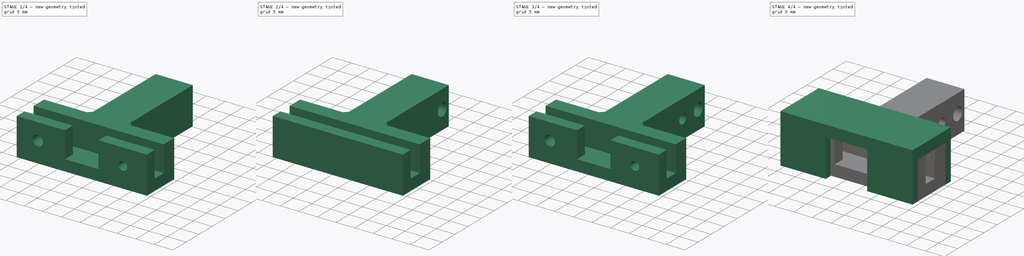
[diagram: build sequence overview — one tinted view per stage of 4, left to right]
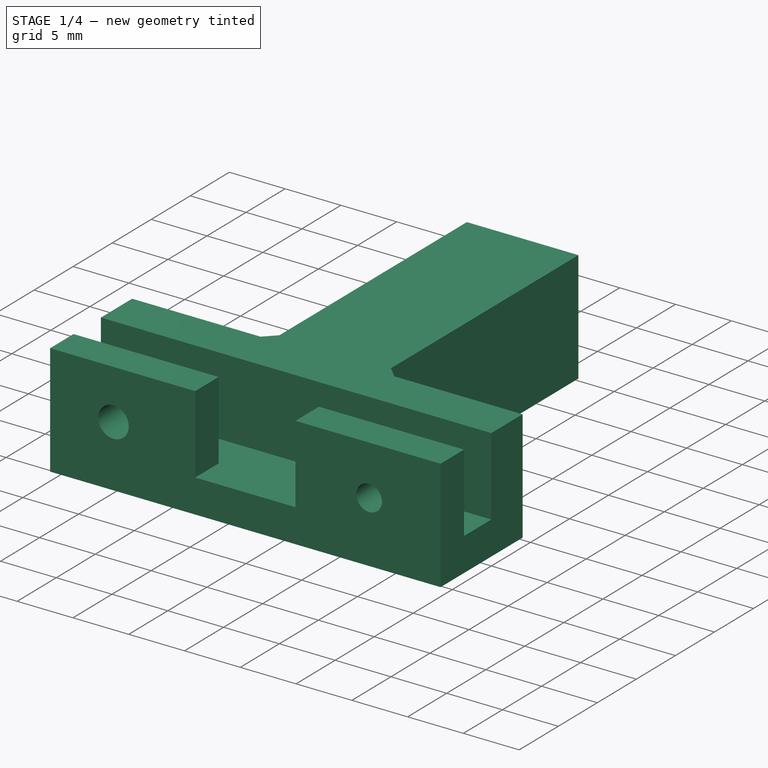
[diagram: stage 1 of 4 — iso view after this stage's code; geometry added in this stage tinted green]
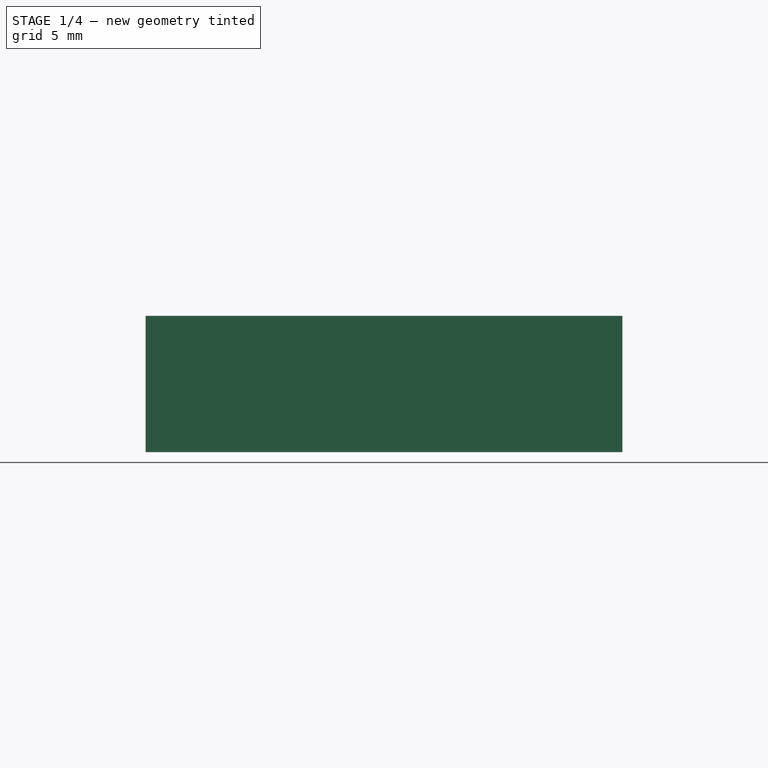
[diagram: stage 1 of 4 — front view after this stage's code; geometry added in this stage tinted green]
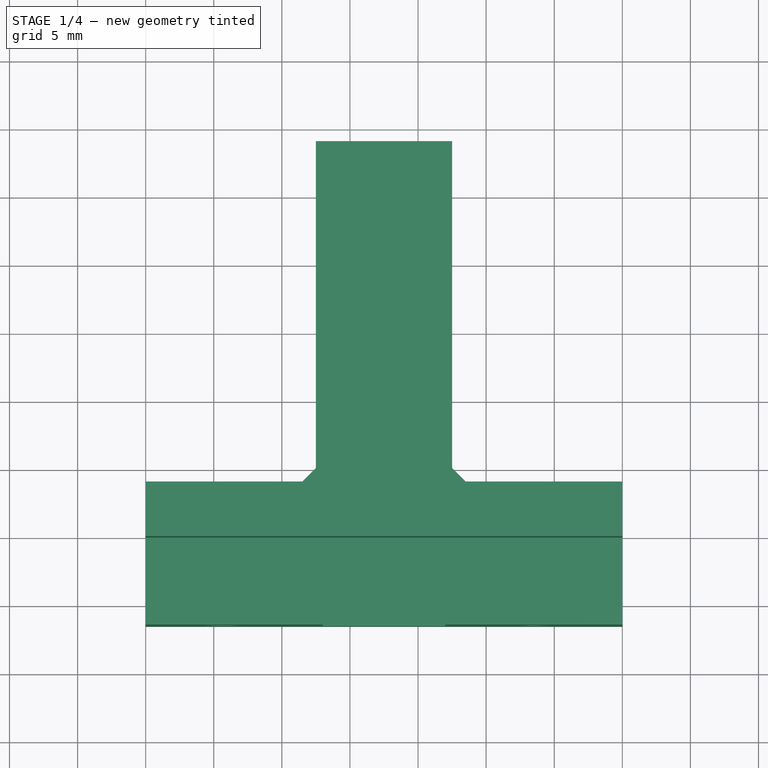
[diagram: stage 1 of 4 — top view after this stage's code; geometry added in this stage tinted green]
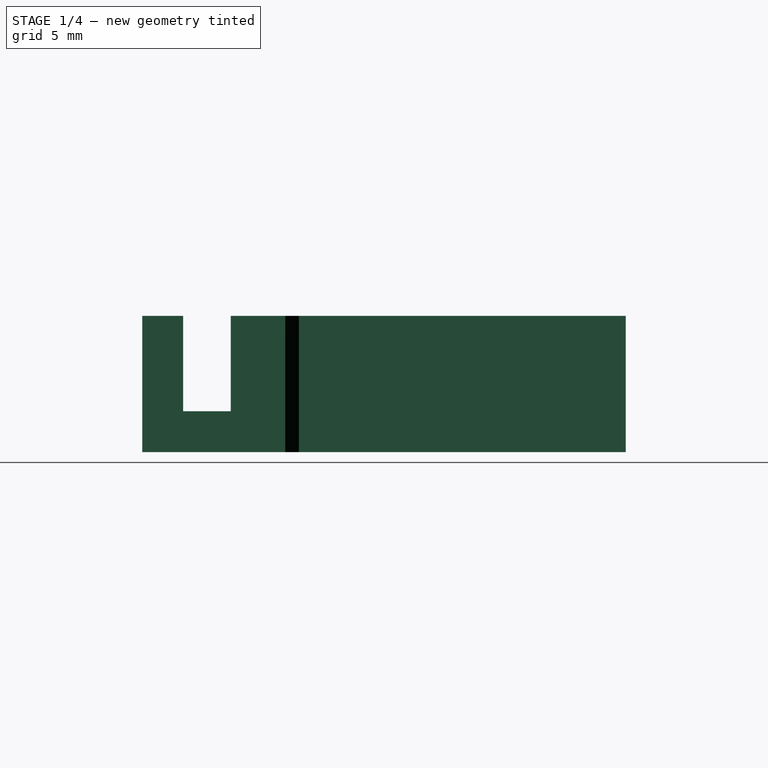
[diagram: stage 1 of 4 — right view after this stage's code; geometry added in this stage tinted green]
FCSTD DOCUMENT  (FreeCAD 0.16R6710 (Git))
Label: cuello
License: CC-BY 3.0
LicenseURL: http://creativecommons.org/licenses/by/3.0/
objects: Sketcher::SketchObject×11, PartDesign::Pocket×7, PartDesign::Pad×4, Part::Feature×2, PartDesign::Chamfer×2, App::DocumentObjectGroup×2, Part::Box×1, App::MeasureDistance×1
note: 38 computed .brp shape members not serialized (recipe doc carries the construction recipe); baked Part::Feature solids carry a one-line shape summary decoded from their .brp

FEATURE [Sketcher::SketchObject] Sketch
  sketch-geometry (8):
    g0: LineSegment StartX=12.5 StartY=29 StartZ=0 EndX=22.5 EndY=29 EndZ=0
    g1: LineSegment StartX=22.5 StartY=29 StartZ=0 EndX=22.5 EndY=4 EndZ=0
    g2: LineSegment StartX=22.5 StartY=4 StartZ=0 EndX=35 EndY=4 EndZ=0
    g3: LineSegment StartX=35 StartY=4 StartZ=0 EndX=35 EndY=0 EndZ=0
    g4: LineSegment StartX=35 StartY=0 StartZ=0 EndX=0 EndY=0 EndZ=0
    g5: LineSegment StartX=0 StartY=0 StartZ=0 EndX=0 EndY=4 EndZ=0
    g6: LineSegment StartX=0 StartY=4 StartZ=0 EndX=12.5 EndY=4 EndZ=0
    g7: LineSegment StartX=12.5 StartY=4 StartZ=0 EndX=12.5 EndY=29 EndZ=0
  constraints (23):
    c: Horizontal(g0)
    c: Coincident(g0,g1)
    c: Vertical(g1)
    c: Coincident(g1,g2)
    c: Horizontal(g2)
    c: Coincident(g2,g3)
    c: Coincident(g3,g4)
    c: Horizontal(g4)
    c: Coincident(g4,g5)
    c: Vertical(g5)
    c: Coincident(g5,g6)
    c: Horizontal(g6)
    c: Coincident(g6,g7)
    c: Vertical(g7)
    c: Coincident(g7,g0)
    c: Equal(g6,g2)
    c: Vertical(g3)
    c: DistanceY(g1) = -25
    c: Equal(g7,g1)
    c: DistanceX(g0) = 10
    c: DistanceX(g4) = -35
    c: DistanceY(g3) = -4
    c: Coincident(g4,g-1)
FEATURE [PartDesign::Pad] Pad
  Length = 10
  Length2 = 100
  Sketch = -> Sketch
  Type = 0
FEATURE [Sketcher::SketchObject] Sketch001
  ExternalGeometry = -> [Pad]
  Placement = pos=(0,29,0) rot=(0,0.707107,0.707107;3.14159rad)
  Support = -> Pad [Face1]
  sketch-geometry (8):
    g0: LineSegment StartX=-19 StartY=9 StartZ=0 EndX=-16 EndY=9 EndZ=0
    g1: LineSegment StartX=-16 StartY=9 StartZ=0 EndX=-16 EndY=1 EndZ=0
    g2: LineSegment StartX=-16 StartY=1 StartZ=0 EndX=-19 EndY=1 EndZ=0
    g3: LineSegment StartX=-19 StartY=1 StartZ=0 EndX=-19 EndY=9 EndZ=0
    g4: LineSegment [constr] StartX=-22.5 StartY=1 StartZ=0 EndX=-19 EndY=1 EndZ=0
    g5: LineSegment [constr] StartX=-16 StartY=1 StartZ=0 EndX=-12.5 EndY=1 EndZ=0
    g6: LineSegment [constr] StartX=-19 StartY=1 StartZ=0 EndX=-19 EndY=0 EndZ=0
    g7: LineSegment [constr] StartX=-19 StartY=10 StartZ=0 EndX=-19 EndY=9 EndZ=0
  constraints (24):
    c: Coincident(g0,g1)
    c: Coincident(g1,g2)
    c: Coincident(g2,g3)
    c: Coincident(g3,g0)
    c: Horizontal(g0)
    c: Horizontal(g2)
    c: Vertical(g1)
    c: Vertical(g3)
    c: DistanceY(g1) = -8
    c: DistanceX(g0) = 3
    c: Horizontal(g4)
    c: Horizontal(g5)
    c: Equal(g5,g4)
    c: Coincident(g5,g1)
    c: PointOnObject(g5,g-4)
    c: Coincident(g4,g2)
    c: PointOnObject(g4,g-3)
    c: Vertical(g6)
    c: Vertical(g7)
    c: Equal(g6,g7)
    c: Coincident(g6,g2)
    c: PointOnObject(g6,g-1)
    c: PointOnObject(g7,g-5)
    c: Coincident(g7,g0)
FEATURE [PartDesign::Pocket] Pocket
  Length = 22
  Sketch = -> Sketch001
  Type = 0
FEATURE [Part::Feature] Pocket006001  label="Pocket007"
  shape: bbox 35 x 35.5 x 10 mm, 30 faces (baked)
FEATURE [PartDesign::Chamfer] Chamfer
  Base = -> Pocket006001 [Edge13]
  Size = 1
FEATURE [PartDesign::Chamfer] Chamfer001  label="cuello_completo"
  Base = -> Chamfer [Edge38]
  Size = 1
FEATURE [App::DocumentObjectGroup] Grupo  label="cierre"
  Group = -> [Box,Pocket003,Pad002,Pad003,Pad003001,Pocket004]
FEATURE [App::DocumentObjectGroup] Grupo001  label="articulador"
  Group = -> [Pad,Pocket,Pocket001,Pocket002,Pad001,Pocket005,Pocket006,Pocket006001,Chamfer,Chamfer001]
FEATURE [App::MeasureDistance] Distance  label="Distance: 35 mm"
  Distance = 35
  P1 = (0,6,13)
  P2 = (35,6,13)
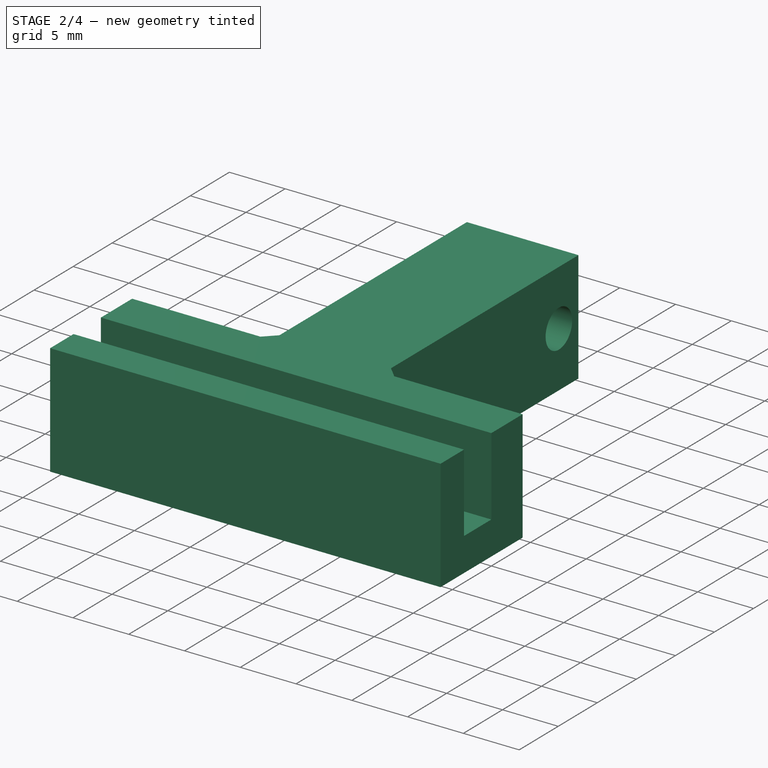
[diagram: stage 2 of 4 — iso view after this stage's code; geometry added in this stage tinted green]
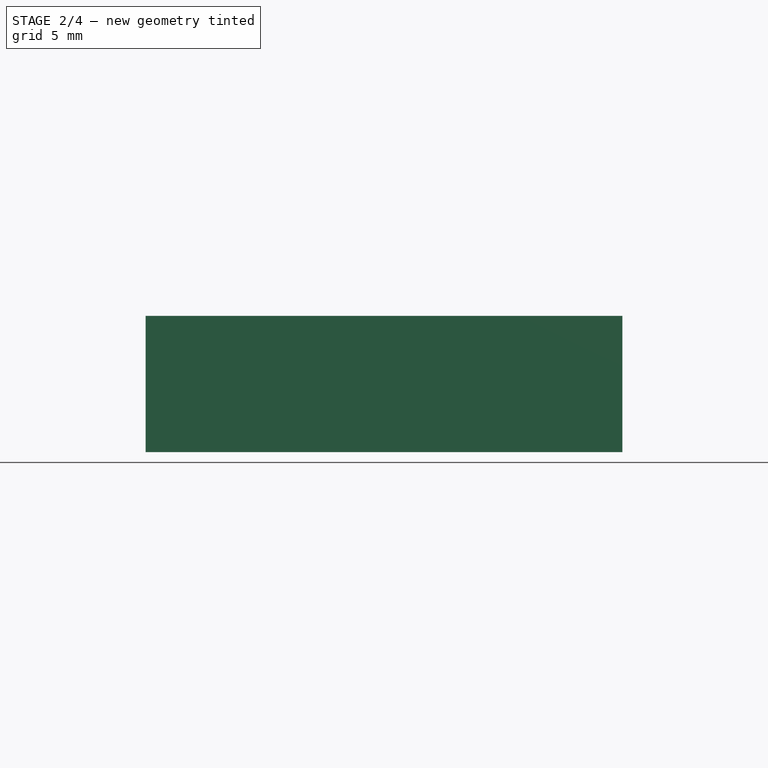
[diagram: stage 2 of 4 — front view after this stage's code; geometry added in this stage tinted green]
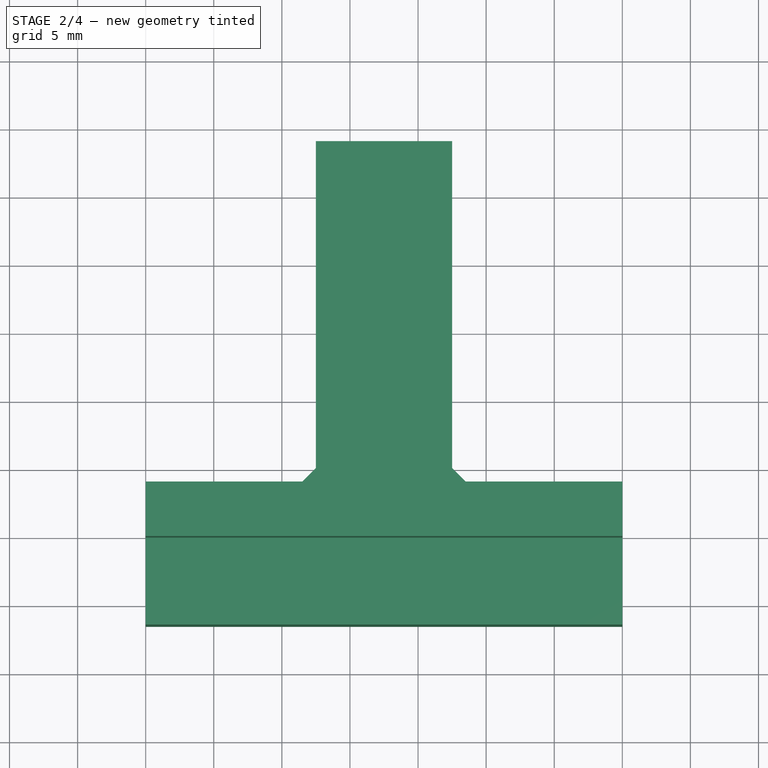
[diagram: stage 2 of 4 — top view after this stage's code; geometry added in this stage tinted green]
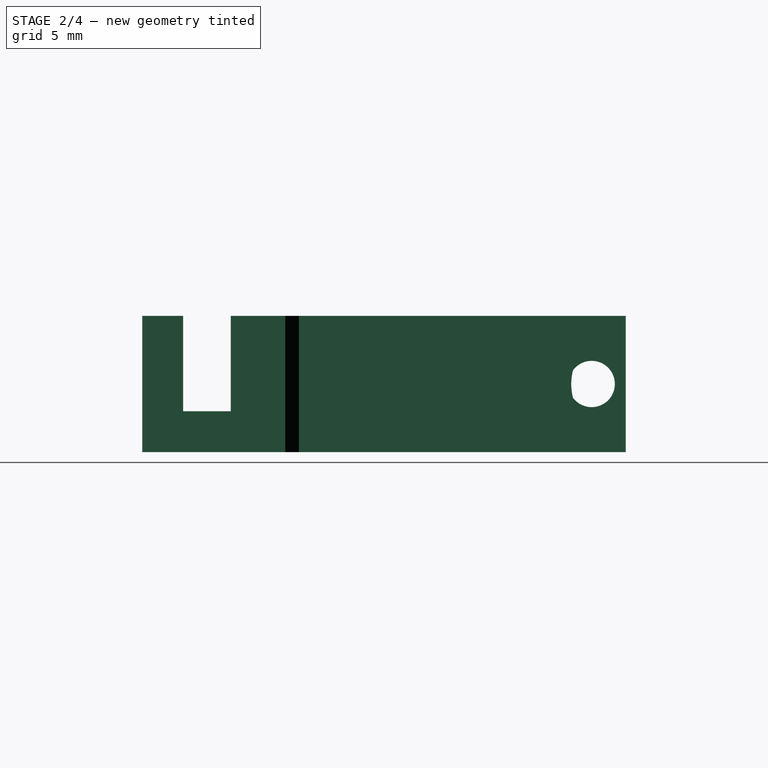
[diagram: stage 2 of 4 — right view after this stage's code; geometry added in this stage tinted green]
FEATURE [Sketcher::SketchObject] Sketch002
  ExternalGeometry = -> [Pocket]
  Placement = pos=(12.5,0,0) rot=(0.57735,-0.57735,-0.57735;2.0944rad)
  Support = -> Pocket [Face2]
  sketch-geometry (4):
    g0: ArcOfCircle CenterX=-29 CenterY=5 CenterZ=0 NormalX=0 NormalY=0 NormalZ=1 Radius=4 StartAngle=4.71239 EndAngle=7.85398
    g1: LineSegment [constr] StartX=-29 StartY=10 StartZ=0 EndX=-29 EndY=9 EndZ=0
    g2: LineSegment [constr] StartX=-29 StartY=1 StartZ=0 EndX=-29 EndY=0 EndZ=0
    g3: LineSegment StartX=-29 StartY=9 StartZ=0 EndX=-29 EndY=1 EndZ=0
  constraints (12):
    c: Radius(g0) = 4
    c: PointOnObject(g0,g-4)
    c: Vertical(g2)
    c: Vertical(g1)
    c: Equal(g1,g2)
    c: Coincident(g2,g0)
    c: Coincident(g2,g-4)
    c: Coincident(g1,g-4)
    c: Coincident(g1,g0)
    c: Vertical(g3)
    c: Coincident(g3,g0)
    c: Coincident(g0,g3)
FEATURE [PartDesign::Pocket] Pocket001
  Length = 5
  Sketch = -> Sketch002
  Type = 0
FEATURE [Sketcher::SketchObject] Sketch003
  ExternalGeometry = -> [Pocket001]
  Placement = pos=(22.5,0,0) rot=(0.57735,0.57735,0.57735;2.0944rad)
  Support = -> Pocket001 [Face3]
  sketch-geometry (3):
    g0: Circle CenterX=26.5 CenterY=5 CenterZ=0 NormalX=0 NormalY=0 NormalZ=1 Radius=1.7
    g1: LineSegment [constr] StartX=26.5 StartY=10 StartZ=0 EndX=26.5 EndY=5 EndZ=0
    g2: LineSegment [constr] StartX=26.5 StartY=5 StartZ=0 EndX=26.5 EndY=0 EndZ=0
  constraints (9):
    c: Radius(g0) = 1.7
    c: Vertical(g1)
    c: Vertical(g2)
    c: Equal(g1,g2)
    c: Coincident(g2,g0)
    c: PointOnObject(g2,g-1)
    c: Coincident(g1,g0)
    c: PointOnObject(g1,g-3)
    c: Distance(g1,g-3) = 2.5
FEATURE [PartDesign::Pocket] Pocket002
  Length = 5
  Sketch = -> Sketch003
  Type = 0
FEATURE [Sketcher::SketchObject] Sketch004
  Placement = pos=(0,0,0) rot=(0.57735,-0.57735,-0.57735;2.0944rad)
  Support = -> Pocket002 [Face13]
  sketch-geometry (6):
    g0: LineSegment StartX=0 StartY=0 StartZ=0 EndX=6.5 EndY=0 EndZ=0
    g1: LineSegment StartX=6.5 StartY=0 StartZ=0 EndX=6.5 EndY=10 EndZ=0
    g2: LineSegment StartX=6.5 StartY=10 StartZ=0 EndX=3.5 EndY=10 EndZ=0
    g3: LineSegment StartX=3.5 StartY=10 StartZ=0 EndX=3.5 EndY=3 EndZ=0
    g4: LineSegment StartX=3.5 StartY=3 StartZ=0 EndX=0 EndY=3 EndZ=0
    g5: LineSegment StartX=0 StartY=3 StartZ=0 EndX=0 EndY=0 EndZ=0
  constraints (17):
    c: Horizontal(g0)
    c: Coincident(g0,g1)
    c: Vertical(g1)
    c: Coincident(g1,g2)
    c: Horizontal(g2)
    c: Coincident(g2,g3)
    c: Vertical(g3)
    c: Coincident(g3,g4)
    c: Horizontal(g4)
    c: Coincident(g4,g5)
    c: Coincident(g5,g0)
    c: Vertical(g5)
    c: DistanceY(g5) = -3
    c: Coincident(g0,g-1)
    c: DistanceX(g4) = -3.5
    c: DistanceX(g2) = -3
    c: DistanceY(g3) = -7
FEATURE [PartDesign::Pad] Pad001
  Length = 35
  Length2 = 100
  Reversed = true
  Sketch = -> Sketch004
  Type = 0
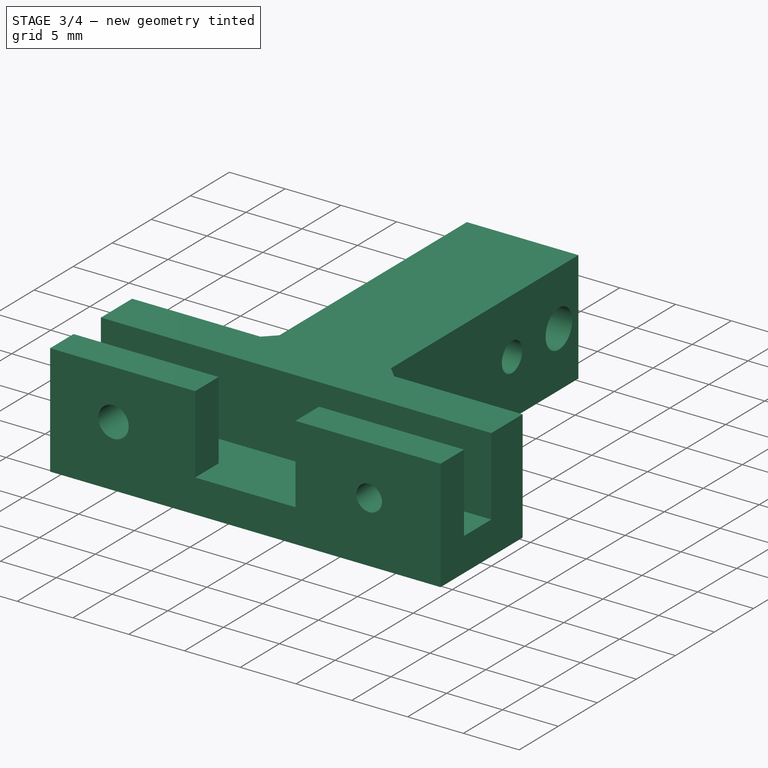
[diagram: stage 3 of 4 — iso view after this stage's code; geometry added in this stage tinted green]
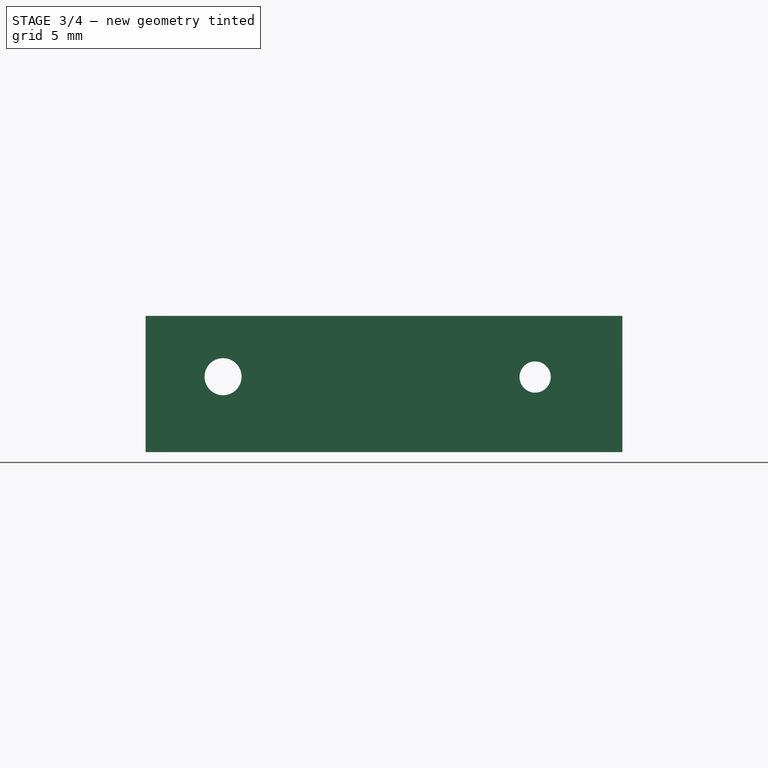
[diagram: stage 3 of 4 — front view after this stage's code; geometry added in this stage tinted green]
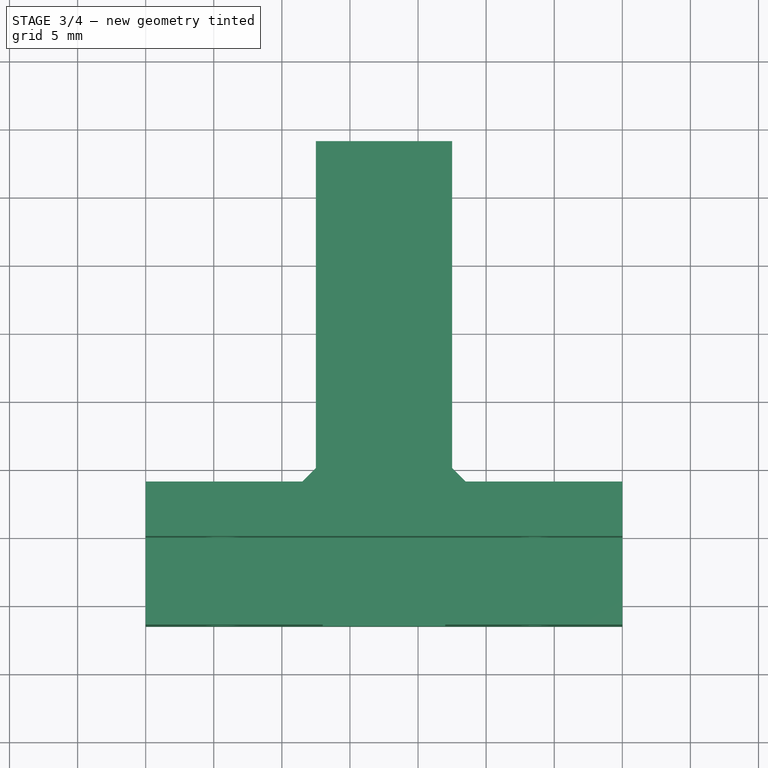
[diagram: stage 3 of 4 — top view after this stage's code; geometry added in this stage tinted green]
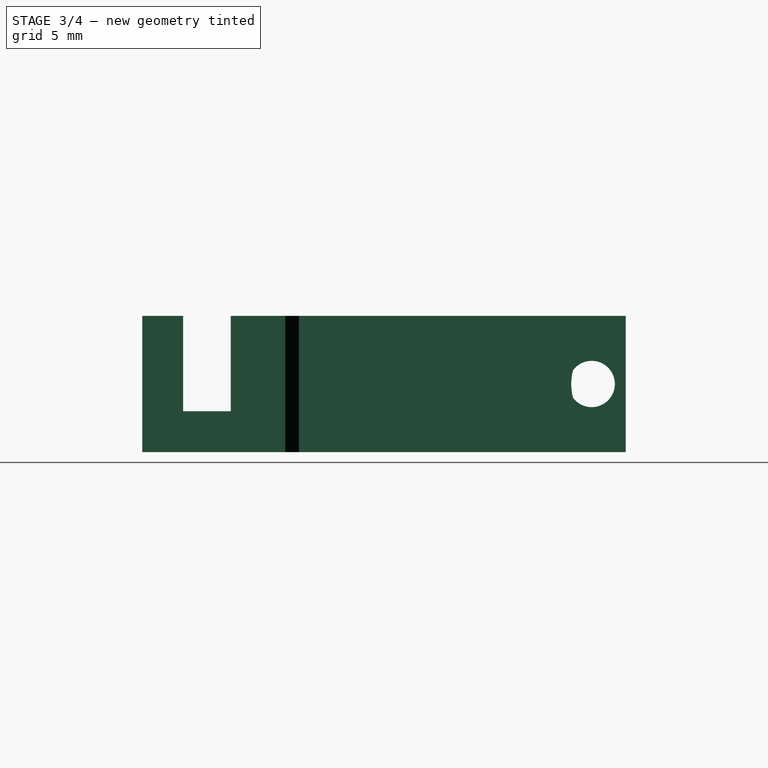
[diagram: stage 3 of 4 — right view after this stage's code; geometry added in this stage tinted green]
FEATURE [PartDesign::Pocket] Pocket003  label="cuello"
  Length = 7
  Sketch = -> Sketch005
  Type = 0
FEATURE [Sketcher::SketchObject] Sketch009
  Placement = pos=(0,4,0) rot=(0,0.707107,0.707107;3.14159rad)
  Support = -> Pocket003 [Face10]
  sketch-geometry (2):
    g0: Circle CenterX=-28.5981 CenterY=5.51115 CenterZ=0 NormalX=0 NormalY=0 NormalZ=1 Radius=1.14671
    g1: Circle CenterX=-5.68191 CenterY=5.53699 CenterZ=0 NormalX=0 NormalY=0 NormalZ=1 Radius=1.35975
FEATURE [PartDesign::Pocket] Pocket005
  Length = 5
  Sketch = -> Sketch009
  Type = 1
FEATURE [Sketcher::SketchObject] Sketch010
  ExternalGeometry = -> [Pocket005]
  Placement = pos=(22.5,0,0) rot=(0.57735,0.57735,0.57735;2.0944rad)
  Support = -> Pocket005 [Face3]
  sketch-geometry (2):
    g0: LineSegment [constr] StartX=4 StartY=5 StartZ=0 EndX=29 EndY=5 EndZ=0
    g1: Circle CenterX=20.5 CenterY=5 CenterZ=0 NormalX=0 NormalY=0 NormalZ=1 Radius=1.3
  constraints (7):
    c: PointOnObject(g0,g-4)
    c: PointOnObject(g-3,g0)
    c: Horizontal(g0)
    c: PointOnObject(g0,g-5)
    c: PointOnObject(g1,g0)
    c: Radius(g1) = 1.3
    c: Distance(g1,g-3) = 6
FEATURE [PartDesign::Pocket] Pocket006
  Length = 5
  Sketch = -> Sketch010
  Type = 0
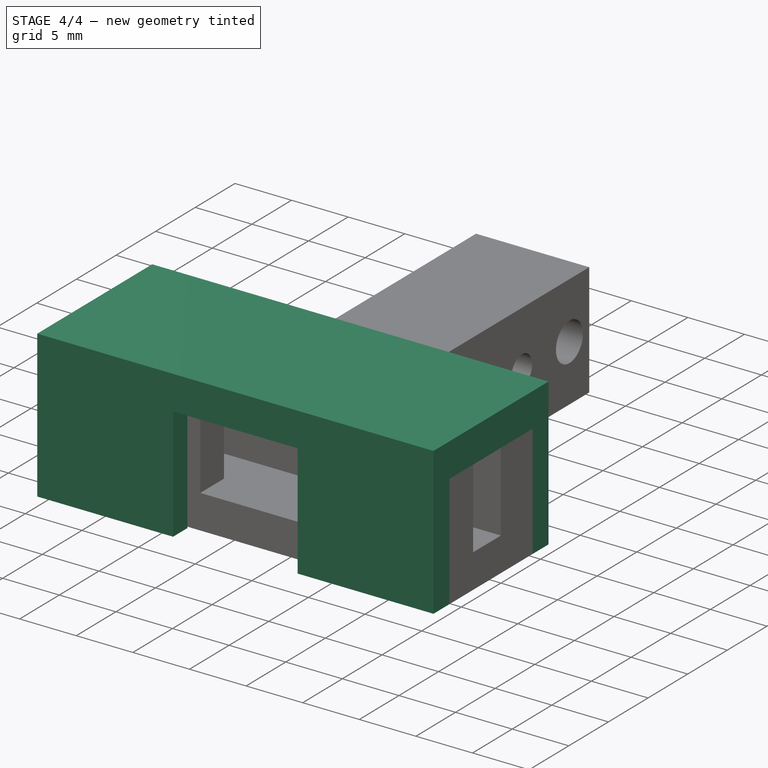
[diagram: stage 4 of 4 — iso view after this stage's code; geometry added in this stage tinted green]
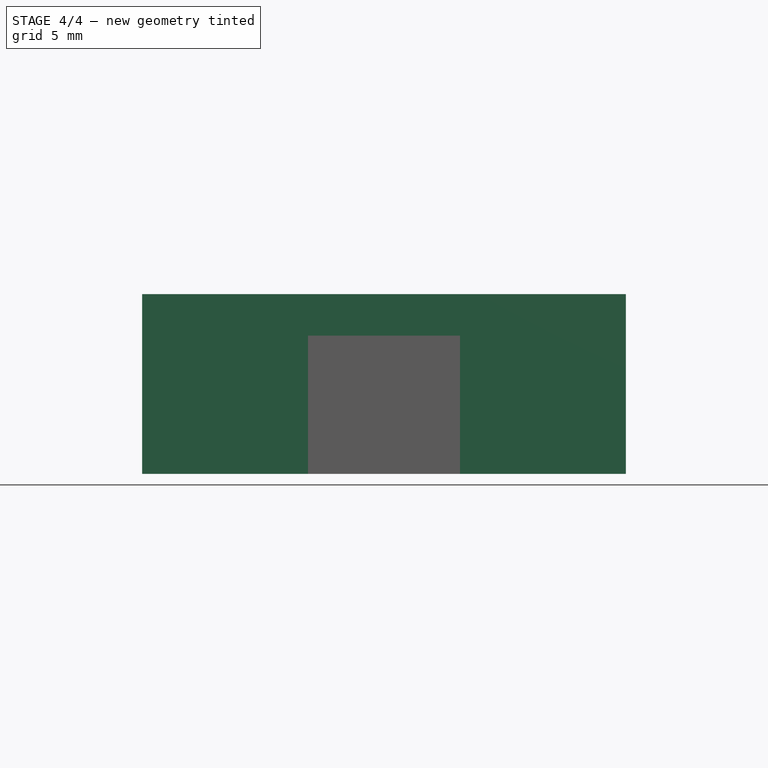
[diagram: stage 4 of 4 — front view after this stage's code; geometry added in this stage tinted green]
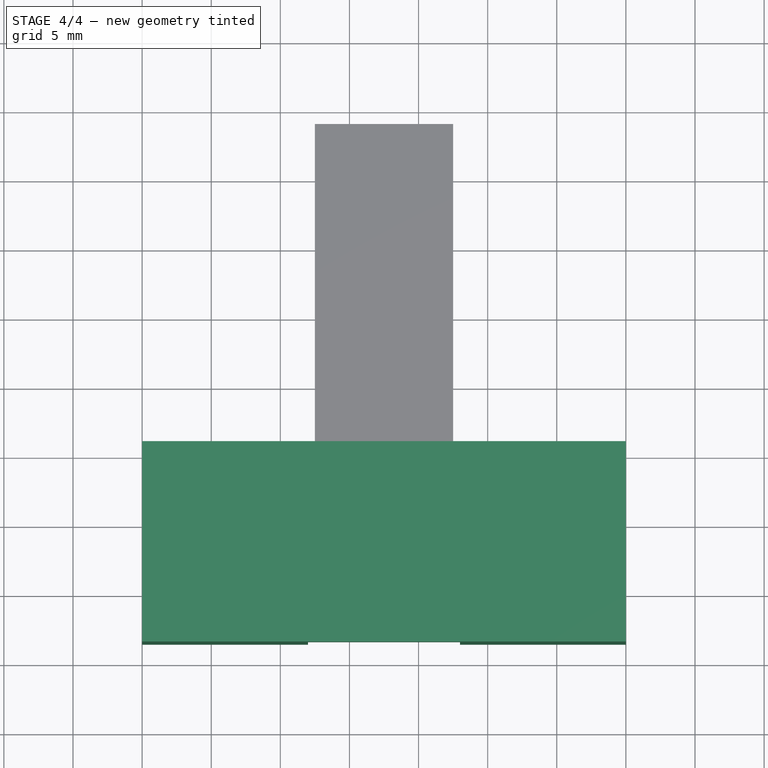
[diagram: stage 4 of 4 — top view after this stage's code; geometry added in this stage tinted green]
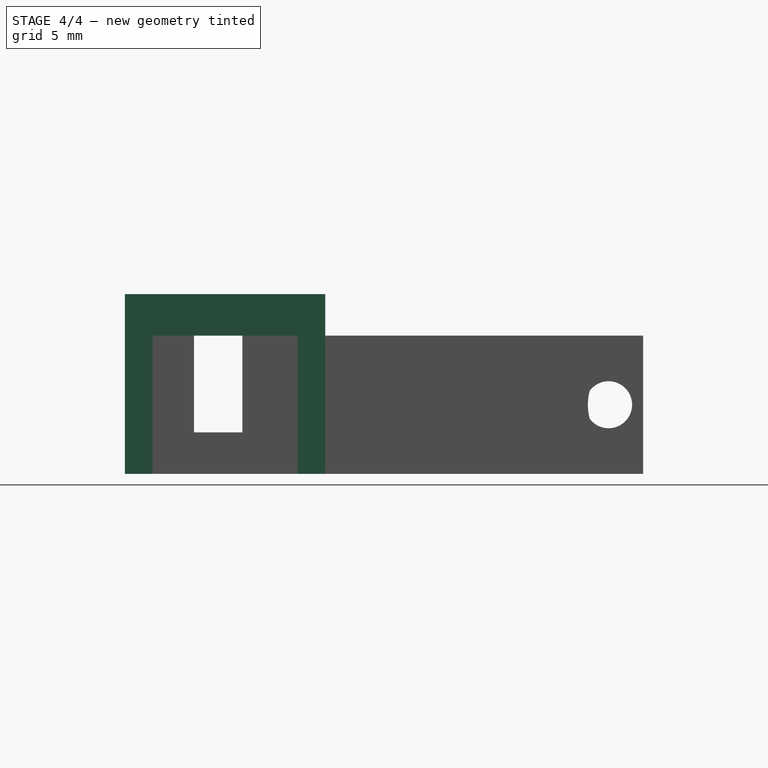
[diagram: stage 4 of 4 — right view after this stage's code; geometry added in this stage tinted green]
FEATURE [Sketcher::SketchObject] Sketch005
  ExternalGeometry = -> [Pad001]
  Placement = pos=(0,0,10) rot=(0,0,1;0rad)
  Support = -> Pad001 [Face23]
  sketch-geometry (6):
    g0: LineSegment StartX=13 StartY=-3.5 StartZ=0 EndX=22 EndY=-3.5 EndZ=0
    g1: LineSegment StartX=22 StartY=-3.5 StartZ=0 EndX=22 EndY=-6.5 EndZ=0
    g2: LineSegment StartX=22 StartY=-6.5 StartZ=0 EndX=13 EndY=-6.5 EndZ=0
    g3: LineSegment StartX=13 StartY=-6.5 StartZ=0 EndX=13 EndY=-3.5 EndZ=0
    g4: LineSegment [constr] StartX=0 StartY=-6.5 StartZ=0 EndX=13 EndY=-6.5 EndZ=0
    g5: LineSegment [constr] StartX=22 StartY=-6.5 StartZ=0 EndX=35 EndY=-6.5 EndZ=0
  constraints (18):
    c: Coincident(g0,g1)
    c: Coincident(g1,g2)
    c: Coincident(g2,g3)
    c: Coincident(g3,g0)
    c: Horizontal(g0)
    c: Horizontal(g2)
    c: Vertical(g1)
    c: Vertical(g3)
    c: PointOnObject(g0,g-3)
    c: PointOnObject(g1,g-4)
    c: Horizontal(g4)
    c: Horizontal(g5)
    c: Equal(g5,g4)
    c: Coincident(g5,g-4)
    c: Coincident(g5,g1)
    c: Coincident(g4,g2)
    c: Coincident(g4,g-4)
    c: Distance(g2,g1) = 9
FEATURE [Part::Box] Box
  Height = 3
  Length = 35
  Placement = pos=(0,-8.5,10) rot=(0,0,1;0rad)
  Width = 14.5
FEATURE [Sketcher::SketchObject] Sketch006
  ExternalGeometry = -> [Box]
  Placement = pos=(0,-8.5,10) rot=(0.57735,-0.57735,-0.57735;2.0944rad)
  Support = -> Box [Face1]
  sketch-geometry (8):
    g0: LineSegment StartX=-14.5 StartY=0 StartZ=0 EndX=-12.7 EndY=0 EndZ=0
    g1: LineSegment StartX=-12.7 StartY=0 StartZ=0 EndX=-12.7 EndY=-10 EndZ=0
    g2: LineSegment StartX=-12.7 StartY=-10 StartZ=0 EndX=-14.5 EndY=-10 EndZ=0
    g3: LineSegment StartX=-14.5 StartY=-10 StartZ=0 EndX=-14.5 EndY=0 EndZ=0
    g4: LineSegment StartX=0 StartY=0 StartZ=0 EndX=-1.8 EndY=0 EndZ=0
    g5: LineSegment StartX=-1.8 StartY=0 StartZ=0 EndX=-1.8 EndY=-10 EndZ=0
    g6: LineSegment StartX=-1.8 StartY=-10 StartZ=0 EndX=0 EndY=-10 EndZ=0
    g7: LineSegment StartX=0 StartY=-10 StartZ=0 EndX=0 EndY=0 EndZ=0
  constraints (22):
    c: Coincident(g0,g1)
    c: Coincident(g1,g2)
    c: Coincident(g2,g3)
    c: Coincident(g3,g0)
    c: Horizontal(g0)
    c: Horizontal(g2)
    c: Vertical(g1)
    c: Vertical(g3)
    c: Coincident(g4,g5)
    c: Coincident(g5,g6)
    c: Coincident(g6,g7)
    c: Coincident(g7,g4)
    c: Horizontal(g4)
    c: Horizontal(g6)
    c: Vertical(g5)
    c: Vertical(g7)
    c: Coincident(g4,g-1)
    c: DistanceX(g6) = 1.8
    c: DistanceY(g7) = 10
    c: Coincident(g0,g-3)
    c: Equal(g2,g6)
    c: Equal(g3,g7)
FEATURE [PartDesign::Pad] Pad002
  Length = 12
  Length2 = 100
  Placement = pos=(0,-8.5,10) rot=(0,0,1;0rad)
  Reversed = true
  Sketch = -> Sketch006
  Type = 0
FEATURE [Sketcher::SketchObject] Sketch007
  ExternalGeometry = -> [Pad002]
  Placement = pos=(35,-8.5,10) rot=(0.57735,0.57735,0.57735;2.0944rad)
  Support = -> Pad002 [Face4]
  sketch-geometry (8):
    g0: LineSegment StartX=14.5 StartY=0 StartZ=0 EndX=12.5 EndY=0 EndZ=0
    g1: LineSegment StartX=12.5 StartY=0 StartZ=0 EndX=12.5 EndY=-10 EndZ=0
    g2: LineSegment StartX=12.5 StartY=-10 StartZ=0 EndX=14.5 EndY=-10 EndZ=0
    g3: LineSegment StartX=14.5 StartY=-10 StartZ=0 EndX=14.5 EndY=0 EndZ=0
    g4: LineSegment StartX=2 StartY=0 StartZ=0 EndX=0 EndY=0 EndZ=0
    g5: LineSegment StartX=0 StartY=0 StartZ=0 EndX=0 EndY=-10 EndZ=0
    g6: LineSegment StartX=0 StartY=-10 StartZ=0 EndX=2 EndY=-10 EndZ=0
    g7: LineSegment StartX=2 StartY=-10 StartZ=0 EndX=2 EndY=0 EndZ=0
  constraints (22):
    c: Coincident(g0,g1)
    c: Coincident(g1,g2)
    c: Coincident(g2,g3)
    c: Coincident(g3,g0)
    c: Horizontal(g0)
    c: Horizontal(g2)
    c: Vertical(g1)
    c: Vertical(g3)
    c: Coincident(g4,g5)
    c: Coincident(g5,g6)
    c: Coincident(g6,g7)
    c: Coincident(g7,g4)
    c: Horizontal(g4)
    c: Horizontal(g6)
    c: Vertical(g5)
    c: Vertical(g7)
    c: Coincident(g4,g-1)
    c: Coincident(g0,g-3)
    c: Equal(g2,g6)
    c: DistanceX(g0) = -2
    c: DistanceY(g3) = 10
    c: Equal(g5,g1)
FEATURE [PartDesign::Pad] Pad003
  Length = 12
  Length2 = 100
  Placement = pos=(0,-8.5,10) rot=(0,0,1;0rad)
  Reversed = true
  Sketch = -> Sketch007
  Type = 0
FEATURE [Part::Feature] Pad003001  label="Pad004"
  shape: bbox 35 x 14.5 x 13 mm, 18 faces (baked)
FEATURE [Sketcher::SketchObject] Sketch008
  ExternalGeometry = -> [Pad003001]
  Placement = pos=(0,6,0) rot=(0,0.707107,0.707107;3.14159rad)
  Support = -> Pad003001 [Face16]
  sketch-geometry (3):
    g0: Circle CenterX=-28.6108 CenterY=5.5 CenterZ=0 NormalX=0 NormalY=0 NormalZ=1 Radius=1.15167
    g1: Circle CenterX=-5.70135 CenterY=5.5 CenterZ=0 NormalX=0 NormalY=0 NormalZ=1 Radius=1.26301
    g2: LineSegment [constr] StartX=-35 StartY=5.5 StartZ=0 EndX=0 EndY=5.5 EndZ=0
  constraints (6):
    c: Horizontal(g2)
    c: PointOnObject(g2,g-3)
    c: PointOnObject(g2,g-2)
    c: PointOnObject(g0,g2)
    c: PointOnObject(g1,g2)
    c: Distance(g2,g-3) = 5.5
FEATURE [PartDesign::Pocket] Pocket004  label="bloqueador"
  Length = 5
  Sketch = -> Sketch008
  Type = 1
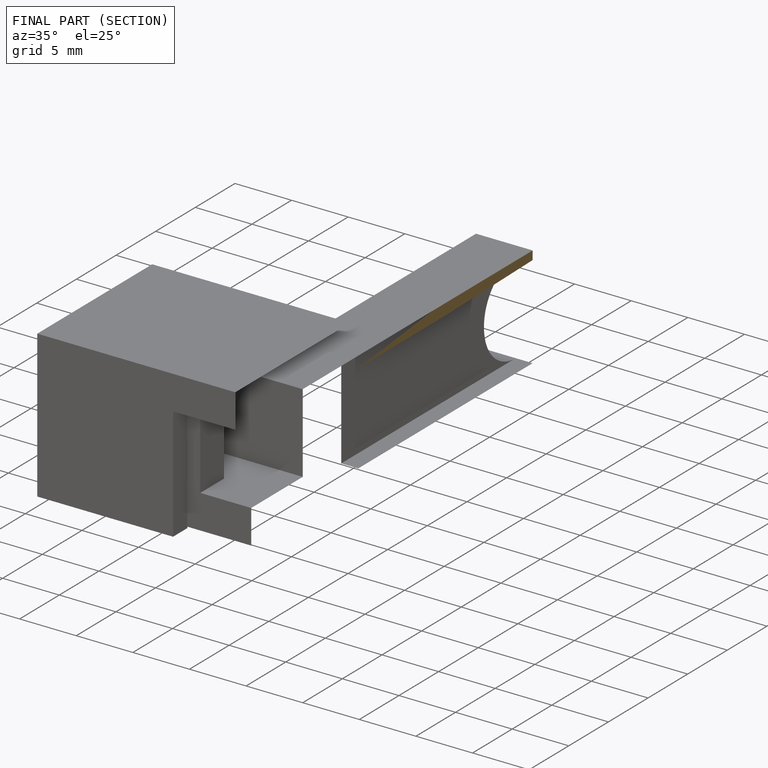
[diagram: finished part — half-section view (interior)]
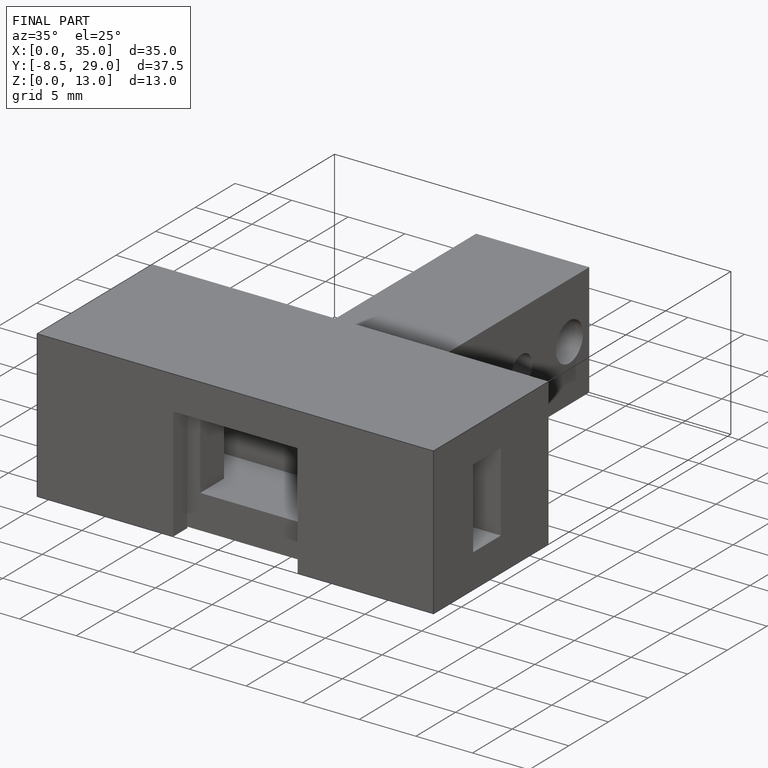
[diagram: finished part — iso view with bounding-box wireframe]
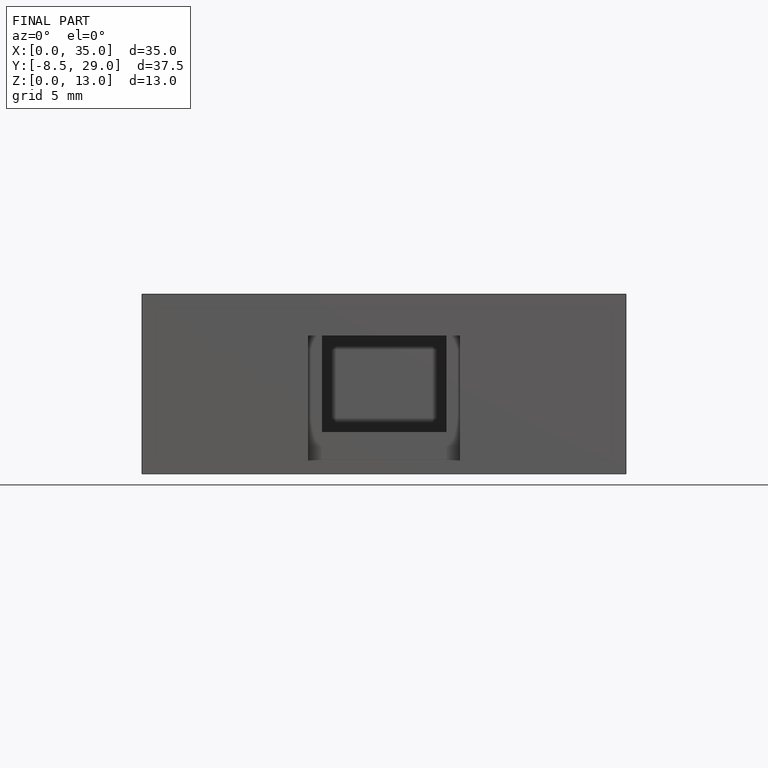
[diagram: finished part — front view with bounding-box wireframe]
